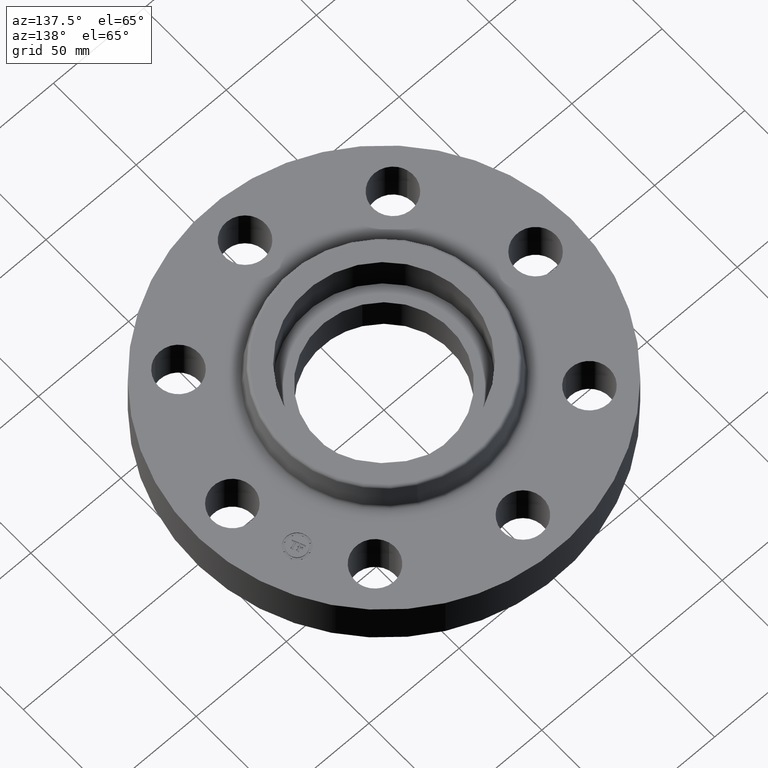
[diagram: clean part render]
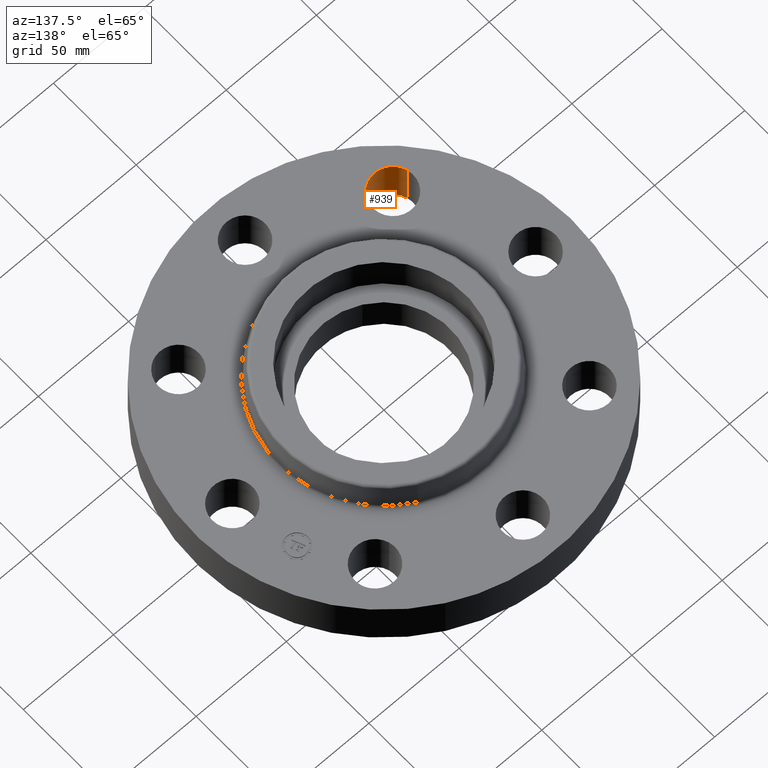
[diagram: same view with one face highlighted and labeled with its STEP entity id]
A machine part, auxiliary view. The second image highlights one B-rep face of the part: STEP entity #939.
In plain terms, the highlighted cylindrical surface (edge-blend (fillet) strip) has radius 11.176 mm, axis along (-0, 0, -1).
Its self-contained STEP definition (entity closure, byte-faithful):
#443=AXIS2_PLACEMENT_3D('Circle Axis2P3D',#441,#442,$) ;
#900=AXIS2_PLACEMENT_3D('Cylinder Axis2P3D',#897,#898,#899) ;
#441=CARTESIAN_POINT('Axis2P3D Location',(-2.34052344574,-2.34052344573,0.)) ;
#445=CARTESIAN_POINT('Vertex',(-1.91832160856,-2.216646052,0.)) ;
#447=CARTESIAN_POINT('Vertex',(-2.76272528292,-2.46440083946,0.)) ;
#897=CARTESIAN_POINT('Axis2P3D Location',(-2.34052344574,-2.34052344574,1.05606299213)) ;
#902=CARTESIAN_POINT('Line Origine',(-1.91832160854,-2.21664605204,0.529999999983)) ;
#906=CARTESIAN_POINT('Vertex',(-1.91832160855,-2.21664605203,1.05999999999)) ;
#909=CARTESIAN_POINT('Line Origine',(-2.76272528294,-2.46440083944,0.529999999983)) ;
#913=CARTESIAN_POINT('Vertex',(-2.76272528294,-2.46440083944,1.05999999999)) ;
#917=CARTESIAN_POINT('Control Point',(-1.91832160854,-2.21664605204,1.05999999999)) ;
#918=CARTESIAN_POINT('Control Point',(-1.89886299304,-2.28296536154,1.05999999999)) ;
#919=CARTESIAN_POINT('Control Point',(-1.89242614351,-2.35310536126,1.05999999999)) ;
#920=CARTESIAN_POINT('Control Point',(-1.90002550449,-2.42365623478,1.05999999999)) ;
#921=CARTESIAN_POINT('Control Point',(-1.94247770352,-2.55797682578,1.05999999999)) ;
#922=CARTESIAN_POINT('Control Point',(-2.03256756249,-2.66627284456,1.05999999999)) ;
#923=CARTESIAN_POINT('Control Point',(-2.08782812325,-2.71078628596,1.05999999999)) ;
#924=CARTESIAN_POINT('Control Point',(-2.21282536182,-2.77574704891,1.05999999999)) ;
#925=CARTESIAN_POINT('Control Point',(-2.35310536126,-2.78862074797,1.06)) ;
#926=CARTESIAN_POINT('Control Point',(-2.42365623478,-2.78102138699,1.06)) ;
#927=CARTESIAN_POINT('Control Point',(-2.55797682578,-2.73856918796,1.06)) ;
#928=CARTESIAN_POINT('Control Point',(-2.66627284456,-2.64847932899,1.06)) ;
#929=CARTESIAN_POINT('Control Point',(-2.71078628596,-2.59321876823,1.06)) ;
#930=CARTESIAN_POINT('Control Point',(-2.74326666743,-2.53072014895,1.06)) ;
#931=CARTESIAN_POINT('Control Point',(-2.76272528294,-2.46440083944,1.06)) ;
#442=DIRECTION('Axis2P3D Direction',(0.,0.,-0.0393700787402)) ;
#898=DIRECTION('Axis2P3D Direction',(-0.,0.,-0.0393700787402)) ;
#899=DIRECTION('Axis2P3D XDirection',(0.0377775444876,0.0110842335096,-0.)) ;
#903=DIRECTION('Vector Direction',(0.,0.,-0.0393700787402)) ;
#910=DIRECTION('Vector Direction',(0.,0.,-0.0393700787402)) ;
#904=VECTOR('Line Direction',#903,0.0393700787402) ;
#911=VECTOR('Line Direction',#910,0.0393700787402) ;
#934=ORIENTED_EDGE('',*,*,#908,.F.) ;
#935=ORIENTED_EDGE('',*,*,#449,.T.) ;
#936=ORIENTED_EDGE('',*,*,#915,.T.) ;
#937=ORIENTED_EDGE('',*,*,#932,.F.) ;
#939=ADVANCED_FACE('PartBody',(#938),#901,.F.) ;
#916=B_SPLINE_CURVE_WITH_KNOTS('',5,(#917,#918,#919,#920,#921,#922,#923,#924,#925,#926,#927,#928,#929,#930,#931),.UNSPECIFIED.,.F.,.U.,(6,3,3,3,6),(-17.5552197483,-8.77760987417,0.,8.77760987417,17.5552197483),.UNSPECIFIED.) ;
#444=CIRCLE('generated circle',#443,0.439999999995) ;
#901=CYLINDRICAL_SURFACE('generated cylinder',#900,0.440000000002) ;
#449=EDGE_CURVE('',#446,#448,#444,.T.) ;
#908=EDGE_CURVE('',#446,#907,#905,.F.) ;
#915=EDGE_CURVE('',#448,#914,#912,.F.) ;
#932=EDGE_CURVE('',#907,#914,#916,.T.) ;
#933=EDGE_LOOP('',(#934,#935,#936,#937)) ;
#938=FACE_OUTER_BOUND('',#933,.T.) ;
#905=LINE('Line',#902,#904) ;
#912=LINE('Line',#909,#911) ;
#446=VERTEX_POINT('',#445) ;
#448=VERTEX_POINT('',#447) ;
#907=VERTEX_POINT('',#906) ;
#914=VERTEX_POINT('',#913) ;